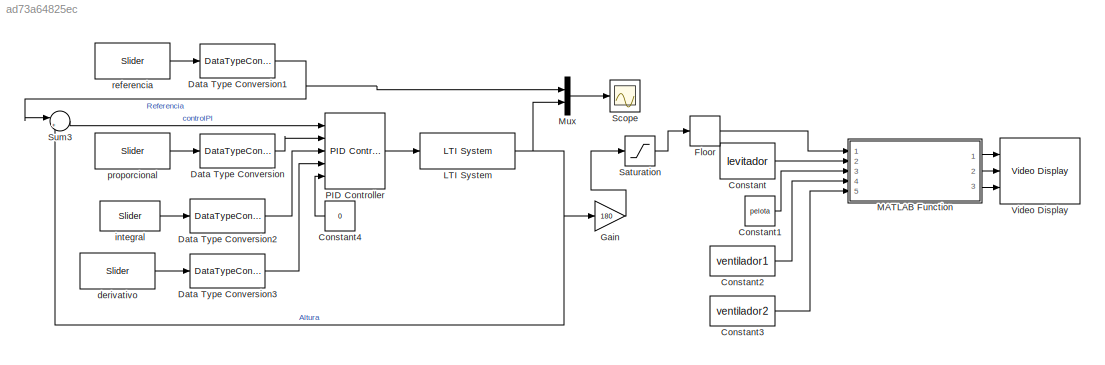
MODEL slx_ad73a64825ec
KIND model
CONFIG AbsTol = auto
CONFIG EnableMultiTasking = off
CONFIG FixedStep = ts
CONFIG MaxStep = auto
CONFIG MinStep = auto
CONFIG RelTol = 1e-3
CONFIG SampleTimeConstraint = Unconstrained
CONFIG SolverName = ode1
CONFIG StartTime = 0.0
CONFIG StopTime = 100
BLOCK [Constant] Constant
  SampleTime = ts
  Value = levitador
BLOCK [Constant] Constant1
  SampleTime = ts
  Value = pelota
BLOCK [Constant] Constant2
  SampleTime = ts
  Value = ventilador1
BLOCK [Constant] Constant3
  SampleTime = ts
  Value = ventilador2
BLOCK [Constant] Constant4
  NameLocation = top
  Value = 0
BLOCK [DataTypeConversion] Data Type Conversion
  OutDataTypeStr = double
  RndMeth = Floor
  SaturateOnIntegerOverflow = off
BLOCK [DataTypeConversion] Data Type Conversion1
  OutDataTypeStr = double
  RndMeth = Floor
  SaturateOnIntegerOverflow = off
BLOCK [DataTypeConversion] Data Type Conversion2
  OutDataTypeStr = double
  RndMeth = Floor
  SaturateOnIntegerOverflow = off
BLOCK [DataTypeConversion] Data Type Conversion3
  OutDataTypeStr = double
  RndMeth = Floor
  SaturateOnIntegerOverflow = off
BLOCK [Rounding] Floor
BLOCK [Gain] Gain
  Gain = 180
BLOCK [Reference] LTI System  REF=cstblocks/LTI System
  Ports = [1, 1]
  SourceBlock = cstblocks/LTI System
  SourceProductBaseCode = CT
  SourceType = LTI Block
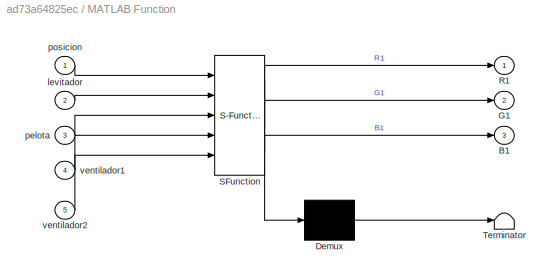
BLOCK [SubSystem] MATLAB Function
  ErrorFcn = Stateflow.Translate.translate
  PermitHierarchicalResolution = ExplicitOnly
  Ports = [5, 3]
  RequestExecContextInheritance = off
  SFBlockType = MATLAB Function
  TreatAsAtomicUnit = on
BLOCK [Demux] MATLAB Function/ Demux 
  Outputs = 1
  Ports = [1, 1]
BLOCK [S-Function] MATLAB Function/ SFunction 
  EnableBusSupport = on
  FunctionName = sf_sfun
  PortCounts = [5 4]
  Ports = [5, 4]
  SFcnIsStateOwnerBlock = off
  SFunctionDeploymentMode = off
  Tag = Stateflow S-Function 2
BLOCK [Terminator] MATLAB Function/ Terminator 
BLOCK [Outport] MATLAB Function/B1
  Port = 3
BLOCK [Outport] MATLAB Function/G1
  Port = 2
BLOCK [Outport] MATLAB Function/R1
BLOCK [Inport] MATLAB Function/levitador
  Port = 2
BLOCK [Inport] MATLAB Function/pelota
  Port = 3
BLOCK [Inport] MATLAB Function/posicion
BLOCK [Inport] MATLAB Function/ventilador1
  Port = 4
BLOCK [Inport] MATLAB Function/ventilador2
  Port = 5
BLOCK [Mux] Mux
  DisplayOption = bar
  Inputs = 2
  Ports = [2, 1]
BLOCK [Reference] PID Controller  REF=slpidlib/PID Controller
  Ports = [5, 1]
  SourceBlock = slpidlib/PID Controller
  SourceProductBaseCode = SL
  SourceType = PID 1dof
BLOCK [Saturate] Saturation
  LowerLimit = 0
  UpperLimit = 180
BLOCK [Scope] Scope
  Floating = off
  NumInputPorts = 1
  Ports = [1]
  ScopeSpecificationString = Simulink.scopes.TimeScopeBlockCfg('CurrentConfiguration', extmgr.ConfigurationSet(extmgr.Configuration('Core','General UI',true),extmgr.Configuration('Core','Source UI',true),extmgr.Configuration('Sources','WiredSimulink',true),extmgr.Configuration('Visuals','Time Domain',true,'SerializedDisplays',{struct('MinYLimReal','0','MaxYLimReal','1','YLabelReal','','MinYLimMag','0','MaxYLimMag','10','Legen...<+2339ch>
BLOCK [Sum] Sum3
  Inputs = |+-
  OutDataTypeStr = double
  Ports = [2, 1]
BLOCK [Reference] Video Display  REF=androidaudiovideolib/Video Display
  Ports = [3]
  SourceBlock = androidaudiovideolib/Video Display
  SourceProductBaseCode = ANDROID
  SourceType = codertarget.internal.androidVideoDisplay
BLOCK [Reference] derivativo  REF=androiduilib/Slider
  Ports = [0, 1]
  SourceBlock = androiduilib/Slider
  SourceProductBaseCode = ANDROID
  SourceType = codertarget.internal.androidSlider
BLOCK [Reference] integral  REF=androiduilib/Slider
  Ports = [0, 1]
  SourceBlock = androiduilib/Slider
  SourceProductBaseCode = ANDROID
  SourceType = codertarget.internal.androidSlider
BLOCK [Reference] proporcional  REF=androiduilib/Slider
  Ports = [0, 1]
  SourceBlock = androiduilib/Slider
  SourceProductBaseCode = ANDROID
  SourceType = codertarget.internal.androidSlider
BLOCK [Reference] referencia  REF=androiduilib/Slider
  Ports = [0, 1]
  SourceBlock = androiduilib/Slider
  SourceProductBaseCode = ANDROID
  SourceType = codertarget.internal.androidSlider
LINE Constant1:1 -> MATLAB Function:3
LINE Constant2:1 -> MATLAB Function:4
LINE Constant3:1 -> MATLAB Function:5
LINE Constant4:1 -> PID Controller:5
LINE Constant:1 -> MATLAB Function:2
NET Data Type Conversion1:1 -> Mux:1, Sum3:1
LINE Data Type Conversion2:1 -> PID Controller:3
LINE Data Type Conversion3:1 -> PID Controller:4
LINE Data Type Conversion:1 -> PID Controller:2
LINE Floor:1 -> MATLAB Function:1
LINE Gain:1 -> Saturation:1
NET LTI System:1 -> Gain:1, Mux:2, Sum3:2
LINE MATLAB Function:1 -> Video Display:1
LINE MATLAB Function:2 -> Video Display:2
LINE MATLAB Function:3 -> Video Display:3
LINE Mux:1 -> Scope:1
LINE PID Controller:1 -> LTI System:1
LINE Saturation:1 -> Floor:1
LINE Sum3:1 -> PID Controller:1
LINE derivativo:1 -> Data Type Conversion3:1
LINE integral:1 -> Data Type Conversion2:1
LINE proporcional:1 -> Data Type Conversion:1
LINE referencia:1 -> Data Type Conversion1:1
note: NET lines group one-source signal fan-out (src -> all destinations, sorted); 1:1 wires keep LINE
CHART MATLAB Function states=1 transitions=1
  STATE_LABEL 'eML_blk_kernel()'
  STATE_LABEL 'SCRIPT:\nfunction [R1,G1,B1] = renderLevitador(posicion,levitador,pelota,ventilador1,ventilador2)\n\nif mod((posicion),2)==1\n    ventilador=ventilador1;\nelse\n    ventilador=ventilador2;\nend\n\nr=ventilador(:,:,1);\ng=ventilador(:,:,2);\nb=ventilador(:,:,3);\nx=220;\ny=426;\n\n[n,m]=size(r);\nfor i=1:n\n    for j=1:m\n        if r(i,j)<=250 &&  g(i,j)<=250 && b(i,j)<=250\n          levitador(i+x,j+y,:)=ventilador...<+433ch>'
CHART  states=0 transitions=0
